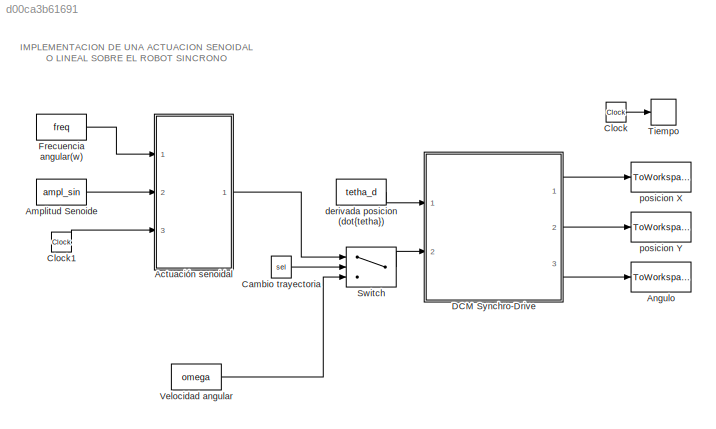
MODEL slx_d00ca3b61691
KIND model
CONFIG AbsTol = auto
CONFIG EnableMultiTasking = off
CONFIG FixedStep = auto
CONFIG MaxStep = auto
CONFIG MinStep = auto
CONFIG RelTol = 1e-3
CONFIG SampleTimeConstraint = Unconstrained
CONFIG Solver = VariableStepAuto
CONFIG SolverName = VariableStepAuto
CONFIG StartTime = 0.0
CONFIG StopTime = t_sim
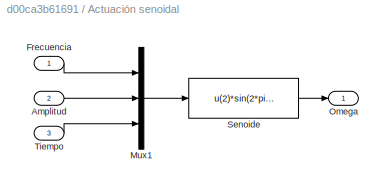
BLOCK [SubSystem] Actuación senoidal
  Ports = [3, 1]
  RequestExecContextInheritance = off
  Variant = off
BLOCK [Inport] Actuación senoidal/Amplitud 
  IconDisplay = Port number
  Port = 2
BLOCK [Inport] Actuación senoidal/Frecuencia 
  IconDisplay = Port number
BLOCK [Mux] Actuación senoidal/Mux1
  DisplayOption = bar
  Inputs = 3
  Ports = [3, 1]
BLOCK [Outport] Actuación senoidal/Omega
  IconDisplay = Port number
BLOCK [Fcn] Actuación senoidal/Senoide
  Expr = u(2)*sin(2*pi*u(1)*u(3))
BLOCK [Inport] Actuación senoidal/Tiempo
  IconDisplay = Port number
  Port = 3
BLOCK [Constant] Amplitud Senoide 
  Value = ampl_sin
BLOCK [ToWorkspace] Angulo
  FixptAsFi = on
  MaxDataPoints = inf
  Ports = [1]
  SampleTime = -1
  Save2DSignal = 3-D array (concatenate along third dimension)
  VariableName = ang_phi
BLOCK [Constant] Cambio trayectoria
  Value = sel
BLOCK [Clock] Clock
BLOCK [Clock] Clock1
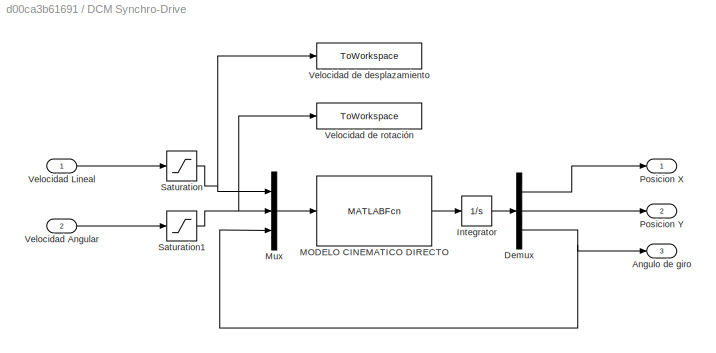
BLOCK [SubSystem] DCM Synchro-Drive
  Ports = [2, 3]
  RequestExecContextInheritance = off
  Variant = off
BLOCK [Outport] DCM Synchro-Drive/Angulo de giro
  IconDisplay = Port number
  Port = 3
BLOCK [Demux] DCM Synchro-Drive/Demux
  DisplayOption = bar
  Outputs = 3
  Ports = [1, 3]
BLOCK [Integrator] DCM Synchro-Drive/Integrator
  InitialCondition = pos_init
  Ports = [1, 1]
BLOCK [MATLABFcn] DCM Synchro-Drive/MODELO CINEMATICO DIRECTO
  MATLABFcn = MCD_movil
  OutputDimensions = 3
  Ports = [1, 1]
BLOCK [Mux] DCM Synchro-Drive/Mux
  DisplayOption = bar
  Inputs = 3
  Ports = [3, 1]
BLOCK [Outport] DCM Synchro-Drive/Posicion X
  IconDisplay = Port number
BLOCK [Outport] DCM Synchro-Drive/Posicion Y
  IconDisplay = Port number
  Port = 2
BLOCK [Saturate] DCM Synchro-Drive/Saturation
  InputPortMap = u0
  LowerLimit = tetha_d_sat(1)
  Ports = [1, 1]
  UpperLimit = tetha_d_sat(2)
BLOCK [Saturate] DCM Synchro-Drive/Saturation1
  InputPortMap = u0
  LowerLimit = omega_sat(1)
  Ports = [1, 1]
  UpperLimit = omega_sat(2)
BLOCK [Inport] DCM Synchro-Drive/Velocidad Angular
  IconDisplay = Port number
  Port = 2
BLOCK [Inport] DCM Synchro-Drive/Velocidad Lineal
  IconDisplay = Port number
BLOCK [ToWorkspace] DCM Synchro-Drive/Velocidad de desplazamiento
  FixptAsFi = on
  MaxDataPoints = inf
  Ports = [1]
  SampleTime = -1
  Save2DSignal = 3-D array (concatenate along third dimension)
  SaveFormat = Timeseries
  VariableName = V_desplazamiento
BLOCK [ToWorkspace] DCM Synchro-Drive/Velocidad de rotación
  FixptAsFi = on
  MaxDataPoints = inf
  Ports = [1]
  SampleTime = -1
  Save2DSignal = 3-D array (concatenate along third dimension)
  SaveFormat = Timeseries
  VariableName = V_rotacion
BLOCK [Constant] Frecuencia angular(w)
  Value = freq
BLOCK [Switch] Switch
  Criteria = u2 > Threshold
  InputSameDT = off
  SaturateOnIntegerOverflow = off
BLOCK [ToWorkspace] Tiempo
  FixptAsFi = on
  MaxDataPoints = inf
  Ports = [1]
  SampleTime = -1
  Save2DSignal = 3-D array (concatenate along third dimension)
  VariableName = t
BLOCK [Constant] Velocidad angular
  Value = omega
BLOCK [Constant] derivada posicion (dot{tetha})
  Value = tetha_d
BLOCK [ToWorkspace] posicion X
  FixptAsFi = on
  MaxDataPoints = inf
  Ports = [1]
  SampleTime = -1
  Save2DSignal = 3-D array (concatenate along third dimension)
  VariableName = posx
BLOCK [ToWorkspace] posicion Y
  FixptAsFi = on
  MaxDataPoints = inf
  Ports = [1]
  SampleTime = -1
  Save2DSignal = 3-D array (concatenate along third dimension)
  VariableName = posy
ANNOTATION (root): IMPLEMENTACION DE UNA ACTUACION SENOIDAL O LINEAL SOBRE EL ROBOT SINCRONO
LINE Actuación senoidal/Amplitud :1 -> Actuación senoidal/Mux1:2
LINE Actuación senoidal/Frecuencia :1 -> Actuación senoidal/Mux1:1
LINE Actuación senoidal/Mux1:1 -> Actuación senoidal/Senoide:1
LINE Actuación senoidal/Senoide:1 -> Actuación senoidal/Omega:1
LINE Actuación senoidal/Tiempo:1 -> Actuación senoidal/Mux1:3
LINE Actuación senoidal:1 -> Switch:1
LINE Amplitud Senoide :1 -> Actuación senoidal:2
LINE Cambio trayectoria:1 -> Switch:2
LINE Clock1:1 -> Actuación senoidal:3
LINE Clock:1 -> Tiempo:1
LINE DCM Synchro-Drive/Demux:1 -> DCM Synchro-Drive/Posicion X:1
LINE DCM Synchro-Drive/Demux:2 -> DCM Synchro-Drive/Posicion Y:1
NET DCM Synchro-Drive/Demux:3 -> DCM Synchro-Drive/Angulo de giro:1, DCM Synchro-Drive/Mux:3
LINE DCM Synchro-Drive/Integrator:1 -> DCM Synchro-Drive/Demux:1
LINE DCM Synchro-Drive/MODELO CINEMATICO DIRECTO:1 -> DCM Synchro-Drive/Integrator:1
LINE DCM Synchro-Drive/Mux:1 -> DCM Synchro-Drive/MODELO CINEMATICO DIRECTO:1
NET DCM Synchro-Drive/Saturation1:1 -> DCM Synchro-Drive/Mux:2, DCM Synchro-Drive/Velocidad de rotación:1
NET DCM Synchro-Drive/Saturation:1 -> DCM Synchro-Drive/Mux:1, DCM Synchro-Drive/Velocidad de desplazamiento:1
LINE DCM Synchro-Drive/Velocidad Angular:1 -> DCM Synchro-Drive/Saturation1:1
LINE DCM Synchro-Drive/Velocidad Lineal:1 -> DCM Synchro-Drive/Saturation:1
LINE DCM Synchro-Drive:1 -> posicion X:1
LINE DCM Synchro-Drive:2 -> posicion Y:1
LINE DCM Synchro-Drive:3 -> Angulo:1
LINE Frecuencia angular(w):1 -> Actuación senoidal:1
LINE Switch:1 -> DCM Synchro-Drive:2
LINE Velocidad angular:1 -> Switch:3
LINE derivada posicion (dot{tetha}):1 -> DCM Synchro-Drive:1
note: NET lines group one-source signal fan-out (src -> all destinations, sorted); 1:1 wires keep LINE
